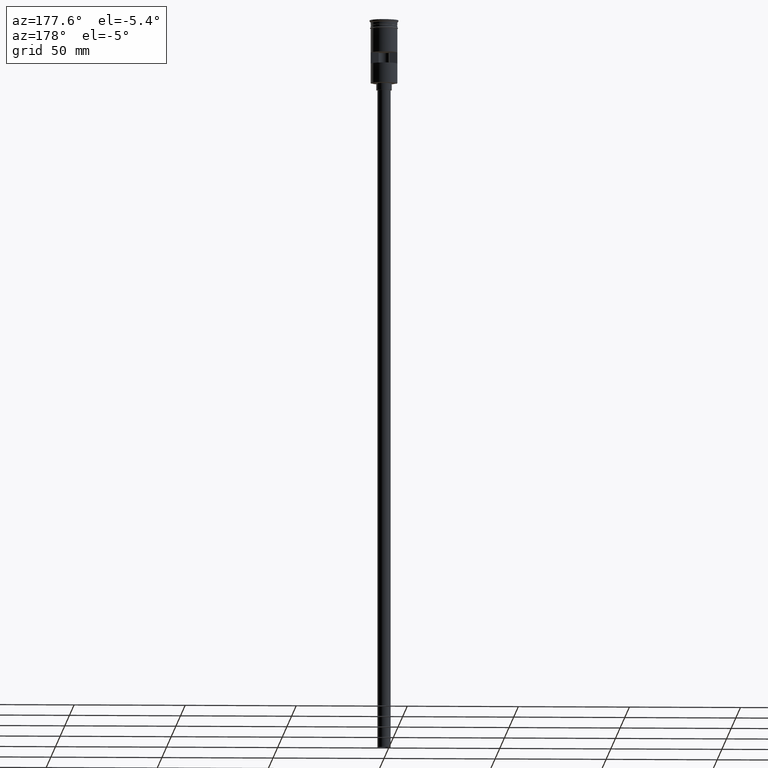
[diagram: clean part render]
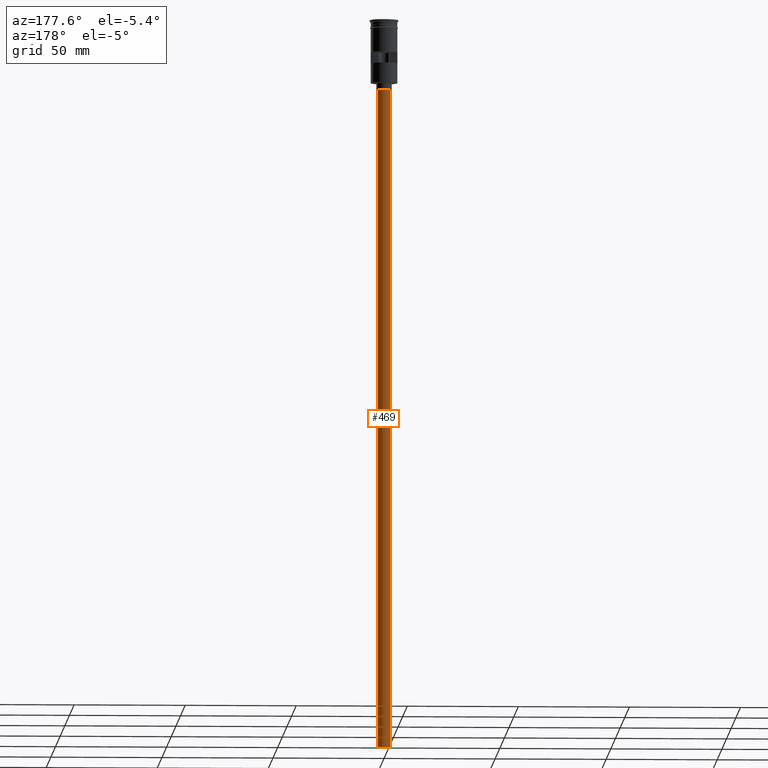
[diagram: same view with one face highlighted and labeled with its STEP entity id]
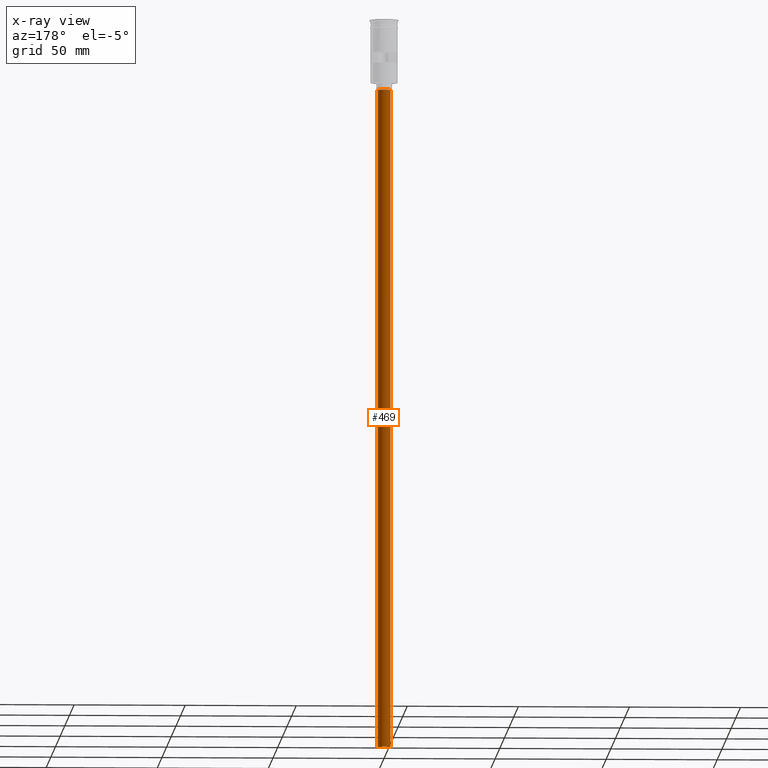
[diagram: x-ray of the same camera — body ghosted, the highlighted face saturated]
A machine part, auxiliary view. The second image highlights one B-rep face of the part: STEP entity #469.
The next image is the same camera in x-ray: the body ghosted, the highlighted face saturated — about 0% of this face is hidden behind the body in this view.
In plain terms, the highlighted cylindrical surface (edge-blend (fillet) strip) has radius 3 mm, axis along (-0, -0, 1).
Its self-contained STEP definition (entity closure, byte-faithful):
#6 = CARTESIAN_POINT ( 'NONE',  ( 0.000000000000000000, 0.000000000000000000, -31.50000000000000000 ) ) ;
#40 = DIRECTION ( 'NONE',  ( 0.000000000000000000, 0.000000000000000000, -1.000000000000000000 ) ) ;
#46 = VECTOR ( 'NONE', #544, 1000.000000000000000 ) ;
#72 = VERTEX_POINT ( 'NONE', #242 ) ;
#74 = DIRECTION ( 'NONE',  ( 1.000000000000000000, 0.000000000000000000, 0.000000000000000000 ) ) ;
#160 = FACE_OUTER_BOUND ( 'NONE', #1524, .T. ) ;
#166 = EDGE_CURVE ( 'NONE', #528, #380, #1012, .T. ) ;
#242 = CARTESIAN_POINT ( 'NONE',  ( 3.000000000000000444, 0.000000000000000000, -328.5000000000000000 ) ) ;
#289 = DIRECTION ( 'NONE',  ( -0.000000000000000000, -0.000000000000000000, 1.000000000000000000 ) ) ;
#322 = CARTESIAN_POINT ( 'NONE',  ( 0.000000000000000000, 0.000000000000000000, -328.5000000000000000 ) ) ;
#380 = VERTEX_POINT ( 'NONE', #828 ) ;
#402 = AXIS2_PLACEMENT_3D ( 'NONE', #322, #289, #74 ) ;
#414 = CARTESIAN_POINT ( 'NONE',  ( -3.000000000000000444, 3.673940397442060361E-16, -328.5000000000000000 ) ) ;
#460 = VERTEX_POINT ( 'NONE', #414 ) ;
#469 = ADVANCED_FACE ( 'NONE', ( #160 ), #1262, .T. ) ;
#480 = ORIENTED_EDGE ( 'NONE', *, *, #898, .T. ) ;
#499 = DIRECTION ( 'NONE',  ( -1.000000000000000000, 0.000000000000000000, 0.000000000000000000 ) ) ;
#506 = VECTOR ( 'NONE', #1216, 1000.000000000000000 ) ;
#528 = VERTEX_POINT ( 'NONE', #1590 ) ;
#544 = DIRECTION ( 'NONE',  ( -0.000000000000000000, -0.000000000000000000, 1.000000000000000000 ) ) ;
#574 = AXIS2_PLACEMENT_3D ( 'NONE', #6, #728, #499 ) ;
#657 = AXIS2_PLACEMENT_3D ( 'NONE', #924, #40, #1425 ) ;
#728 = DIRECTION ( 'NONE',  ( 0.000000000000000000, 0.000000000000000000, -1.000000000000000000 ) ) ;
#744 = LINE ( 'NONE', #1234, #506 ) ;
#798 = CARTESIAN_POINT ( 'NONE',  ( 3.000000000000000444, 0.000000000000000000, -328.5000000000000000 ) ) ;
#828 = CARTESIAN_POINT ( 'NONE',  ( 3.000000000000000444, 0.000000000000000000, -31.50000000000000000 ) ) ;
#898 = EDGE_CURVE ( 'NONE', #460, #528, #744, .T. ) ;
#921 = ORIENTED_EDGE ( 'NONE', *, *, #1260, .F. ) ;
#924 = CARTESIAN_POINT ( 'NONE',  ( 0.000000000000000000, 0.000000000000000000, -328.5000000000000000 ) ) ;
#937 = CIRCLE ( 'NONE', #657, 3.000000000000000444 ) ;
#1012 = CIRCLE ( 'NONE', #574, 3.000000000000000444 ) ;
#1184 = ORIENTED_EDGE ( 'NONE', *, *, #1308, .F. ) ;
#1216 = DIRECTION ( 'NONE',  ( -0.000000000000000000, -0.000000000000000000, 1.000000000000000000 ) ) ;
#1234 = CARTESIAN_POINT ( 'NONE',  ( -3.000000000000000444, 3.673940397442060361E-16, -328.5000000000000000 ) ) ;
#1260 = EDGE_CURVE ( 'NONE', #72, #380, #1523, .T. ) ;
#1262 = CYLINDRICAL_SURFACE ( 'NONE', #402, 3.000000000000000444 ) ;
#1308 = EDGE_CURVE ( 'NONE', #460, #72, #937, .T. ) ;
#1425 = DIRECTION ( 'NONE',  ( -1.000000000000000000, 0.000000000000000000, 0.000000000000000000 ) ) ;
#1523 = LINE ( 'NONE', #798, #46 ) ;
#1524 = EDGE_LOOP ( 'NONE', ( #1184, #480, #1566, #921 ) ) ;
#1566 = ORIENTED_EDGE ( 'NONE', *, *, #166, .T. ) ;
#1590 = CARTESIAN_POINT ( 'NONE',  ( -3.000000000000000444, 3.673940397442060361E-16, -31.50000000000000000 ) ) ;